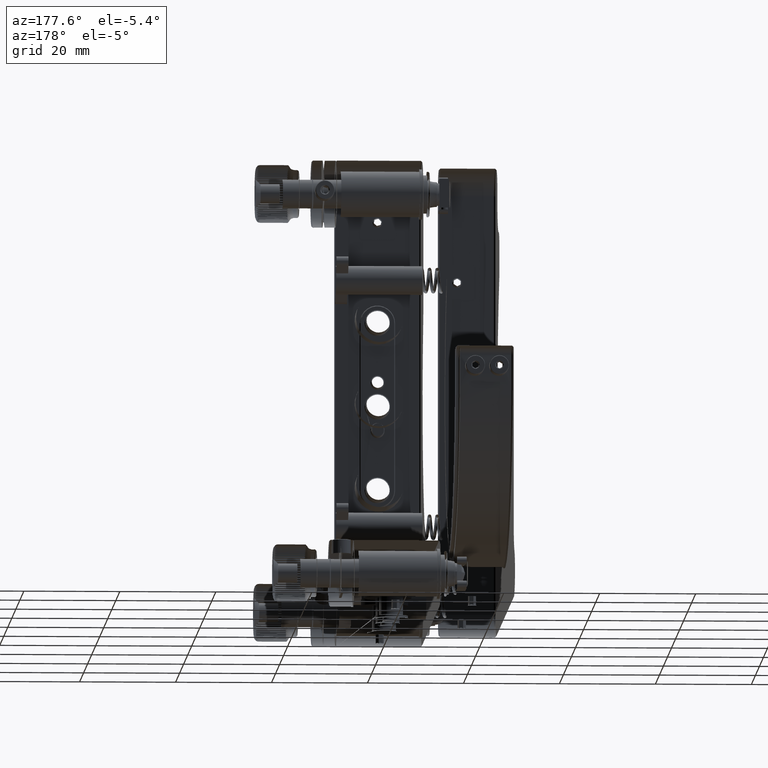
[diagram: clean part render]
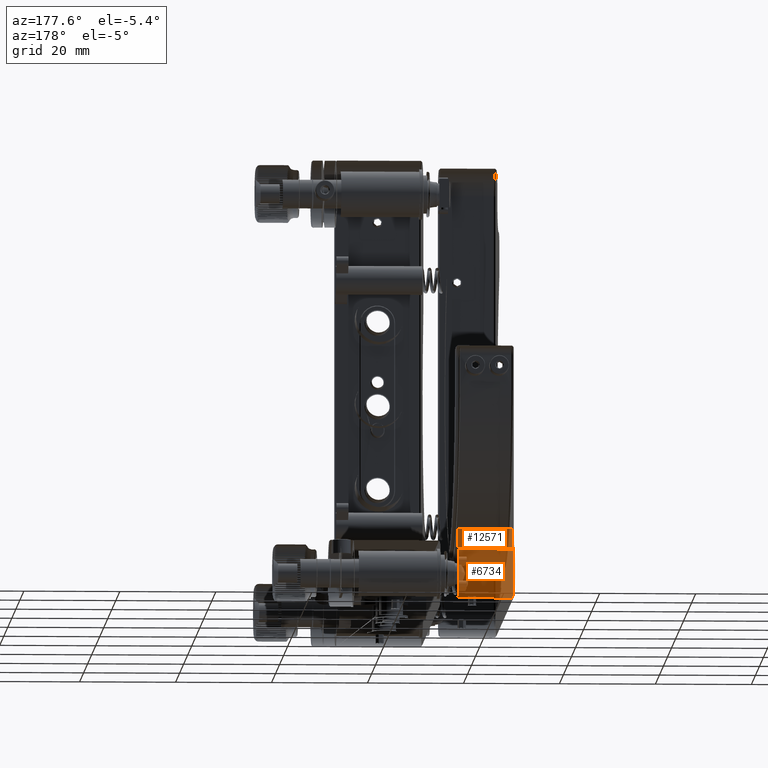
[diagram: same view with one multi-face feature highlighted, each face labeled with its STEP entity id]
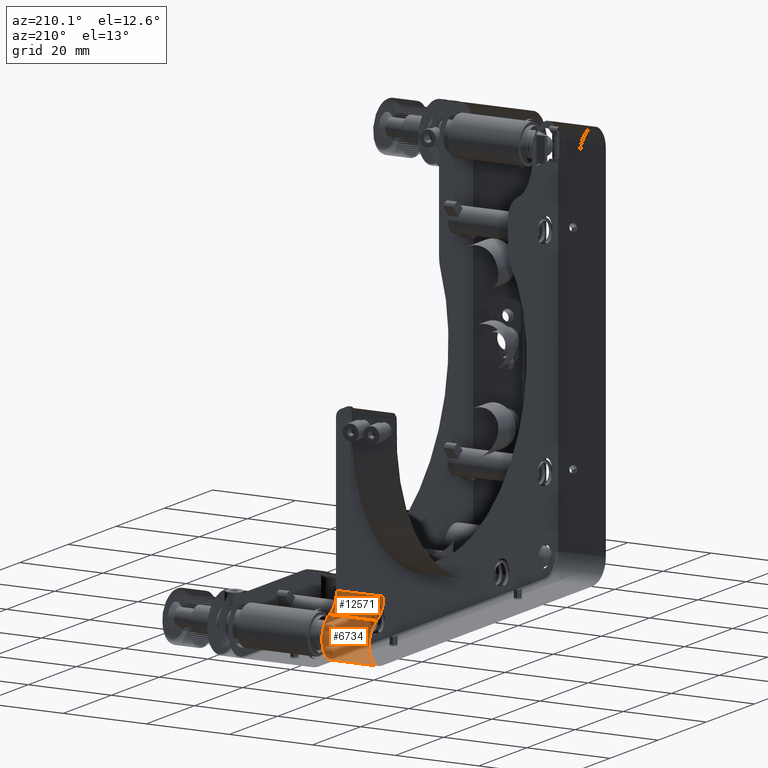
[diagram: same view with one multi-face feature highlighted, each face labeled with its STEP entity id]
A machine part, auxiliary view. The highlighted faces form ONE feature: a constant-radius fillet chain: 2 tangent blend faces with common blend radius 5.125 mm. The faces share edges in the B-rep.
A second angle (auxiliary view) of the same feature is appended — it is thin or edge-on in the first view.
Their STEP definitions:
[1] entity #6734 (Cylinder):
#2994 = VERTEX_POINT ( 'NONE', #31346 ) ;
#4117 = VERTEX_POINT ( 'NONE', #12109 ) ;
#4221 = EDGE_CURVE ( 'NONE', #5369, #2994, #12372, .T. ) ;
#5369 = VERTEX_POINT ( 'NONE', #29076 ) ;
#6734 = ADVANCED_FACE ( 'NONE', ( #28905 ), #13375, .F. ) ;
#7380 = EDGE_CURVE ( 'NONE', #32242, #4117, #11643, .T. ) ;
#9292 = CARTESIAN_POINT ( 'NONE',  ( -12.49999999999999822, 43.95000000000000284, -43.54999999999998295 ) ) ;
#10060 = CARTESIAN_POINT ( 'NONE',  ( -24.19999999995926032, 46.07560975610214626, -38.74955385772973671 ) ) ;
#11643 = LINE ( 'NONE', #28189, #20108 ) ;
#12109 = CARTESIAN_POINT ( 'NONE',  ( -12.80000000001280114, 46.07560975611354337, -38.74955385773071015 ) ) ;
#12372 = LINE ( 'NONE', #28897, #40408 ) ;
#13375 = CYLINDRICAL_SURFACE ( 'NONE', #42683, 5.250000000000004441 ) ;
#13807 = CIRCLE ( 'NONE', #24187, 5.250000000000004441 ) ;
#14182 = DIRECTION ( 'NONE',  ( -1.000000000000000000, -0.000000000000000000, -0.000000000000000000 ) ) ;
#15441 = AXIS2_PLACEMENT_3D ( 'NONE', #33811, #50288, #16222 ) ;
#16222 = DIRECTION ( 'NONE',  ( 0.000000000000000000, 0.000000000000000000, 1.000000000000000000 ) ) ;
#18431 = EDGE_LOOP ( 'NONE', ( #44938, #46573, #50343, #37324 ) ) ;
#20108 = VECTOR ( 'NONE', #53034, 1000.000000000000000 ) ;
#22735 = DIRECTION ( 'NONE',  ( 0.000000000000000000, 0.000000000000000000, 1.000000000000000000 ) ) ;
#22927 = EDGE_CURVE ( 'NONE', #5369, #4117, #37067, .T. ) ;
#24187 = AXIS2_PLACEMENT_3D ( 'NONE', #35460, #35980, #22735 ) ;
#24457 = EDGE_CURVE ( 'NONE', #2994, #32242, #13807, .T. ) ;
#28189 = CARTESIAN_POINT ( 'NONE',  ( -12.49999999999999822, 46.07560975609756326, -38.74955385773539973 ) ) ;
#28897 = CARTESIAN_POINT ( 'NONE',  ( -12.49999999999999822, 43.95000000000000284, -48.79999999999998295 ) ) ;
#28905 = FACE_OUTER_BOUND ( 'NONE', #18431, .T. ) ;
#29076 = CARTESIAN_POINT ( 'NONE',  ( -12.80000000000675797, 43.95000000000000284, -48.80000000000186589 ) ) ;
#31346 = CARTESIAN_POINT ( 'NONE',  ( -24.20000000000000639, 43.95000000000000284, -48.79999999999998295 ) ) ;
#32242 = VERTEX_POINT ( 'NONE', #10060 ) ;
#33811 = CARTESIAN_POINT ( 'NONE',  ( -12.80000000002701199, 43.95000000000000284, -43.54999999999998295 ) ) ;
#35460 = CARTESIAN_POINT ( 'NONE',  ( -24.20000000000000639, 43.95000000000000284, -43.54999999999998295 ) ) ;
#35980 = DIRECTION ( 'NONE',  ( 1.000000000000000000, 0.000000000000000000, 0.000000000000000000 ) ) ;
#37067 = CIRCLE ( 'NONE', #15441, 5.250000000007533529 ) ;
#37324 = ORIENTED_EDGE ( 'NONE', *, *, #24457, .F. ) ;
#38802 = DIRECTION ( 'NONE',  ( 0.000000000000000000, 0.000000000000000000, 1.000000000000000000 ) ) ;
#40408 = VECTOR ( 'NONE', #49170, 1000.000000000000000 ) ;
#42683 = AXIS2_PLACEMENT_3D ( 'NONE', #9292, #14182, #38802 ) ;
#44938 = ORIENTED_EDGE ( 'NONE', *, *, #4221, .F. ) ;
#46573 = ORIENTED_EDGE ( 'NONE', *, *, #22927, .T. ) ;
#49170 = DIRECTION ( 'NONE',  ( -1.000000000000000000, -0.000000000000000000, -0.000000000000000000 ) ) ;
#50288 = DIRECTION ( 'NONE',  ( 1.000000000000000000, -0.000000000000000000, -0.000000000000000000 ) ) ;
#50343 = ORIENTED_EDGE ( 'NONE', *, *, #7380, .F. ) ;
#53034 = DIRECTION ( 'NONE',  ( 1.000000000000000000, 0.000000000000000000, 0.000000000000000000 ) ) ;
[2] entity #12571 (Cylinder):
#299 = DIRECTION ( 'NONE',  ( 1.000000000000000000, 0.000000000000000000, 0.000000000000000000 ) ) ;
#1915 = VERTEX_POINT ( 'NONE', #6571 ) ;
#4117 = VERTEX_POINT ( 'NONE', #12109 ) ;
#4382 = CARTESIAN_POINT ( 'NONE',  ( -24.20000000000000639, 48.09999999999998010, -34.17770038891198681 ) ) ;
#4645 = DIRECTION ( 'NONE',  ( 0.000000000000000000, 0.000000000000000000, -1.000000000000000000 ) ) ;
#5351 = ORIENTED_EDGE ( 'NONE', *, *, #7380, .T. ) ;
#6571 = CARTESIAN_POINT ( 'NONE',  ( -24.20000000001610374, 43.09999999998110098, -34.17770038891198681 ) ) ;
#7380 = EDGE_CURVE ( 'NONE', #32242, #4117, #11643, .T. ) ;
#7616 = AXIS2_PLACEMENT_3D ( 'NONE', #24314, #46369, #46106 ) ;
#9478 = CIRCLE ( 'NONE', #46651, 4.999999999999997335 ) ;
#10060 = CARTESIAN_POINT ( 'NONE',  ( -24.19999999995926032, 46.07560975610214626, -38.74955385772973671 ) ) ;
#11276 = DIRECTION ( 'NONE',  ( 0.000000000000000000, 0.000000000000000000, -1.000000000000000000 ) ) ;
#11643 = LINE ( 'NONE', #28189, #20108 ) ;
#12109 = CARTESIAN_POINT ( 'NONE',  ( -12.80000000001280114, 46.07560975611354337, -38.74955385773071015 ) ) ;
#12571 = ADVANCED_FACE ( 'NONE', ( #32398 ), #15350, .T. ) ;
#13898 = VERTEX_POINT ( 'NONE', #25431 ) ;
#15350 = CYLINDRICAL_SURFACE ( 'NONE', #20486, 4.999999999999997335 ) ;
#18226 = EDGE_CURVE ( 'NONE', #1915, #32242, #9478, .T. ) ;
#20108 = VECTOR ( 'NONE', #53034, 1000.000000000000000 ) ;
#20486 = AXIS2_PLACEMENT_3D ( 'NONE', #31859, #48883, #11276 ) ;
#23061 = ORIENTED_EDGE ( 'NONE', *, *, #28128, .F. ) ;
#24059 = CIRCLE ( 'NONE', #7616, 4.999999999992684074 ) ;
#24314 = CARTESIAN_POINT ( 'NONE',  ( -12.79999999997016857, 48.09999999999998010, -34.17770038891198681 ) ) ;
#25431 = CARTESIAN_POINT ( 'NONE',  ( -12.79999999998508819, 43.09999999999713083, -34.17770038891198681 ) ) ;
#28128 = EDGE_CURVE ( 'NONE', #13898, #4117, #24059, .T. ) ;
#28189 = CARTESIAN_POINT ( 'NONE',  ( -12.49999999999999822, 46.07560975609756326, -38.74955385773539973 ) ) ;
#31859 = CARTESIAN_POINT ( 'NONE',  ( -12.49999999999999822, 48.09999999999998010, -34.17770038891198681 ) ) ;
#32242 = VERTEX_POINT ( 'NONE', #10060 ) ;
#32398 = FACE_OUTER_BOUND ( 'NONE', #37401, .T. ) ;
#33649 = DIRECTION ( 'NONE',  ( -1.000000000000000000, -0.000000000000000000, -0.000000000000000000 ) ) ;
#37317 = ORIENTED_EDGE ( 'NONE', *, *, #18226, .T. ) ;
#37401 = EDGE_LOOP ( 'NONE', ( #23061, #52774, #37317, #5351 ) ) ;
#41500 = CARTESIAN_POINT ( 'NONE',  ( -12.49999999999999822, 43.09999999999998721, -34.17770038891198681 ) ) ;
#44802 = VECTOR ( 'NONE', #33649, 1000.000000000000000 ) ;
#45536 = LINE ( 'NONE', #41500, #44802 ) ;
#46106 = DIRECTION ( 'NONE',  ( 0.000000000000000000, 0.000000000000000000, -1.000000000000000000 ) ) ;
#46369 = DIRECTION ( 'NONE',  ( 1.000000000000000000, 0.000000000000000000, 0.000000000000000000 ) ) ;
#46651 = AXIS2_PLACEMENT_3D ( 'NONE', #4382, #299, #4645 ) ;
#48883 = DIRECTION ( 'NONE',  ( 1.000000000000000000, 0.000000000000000000, 0.000000000000000000 ) ) ;
#50163 = EDGE_CURVE ( 'NONE', #13898, #1915, #45536, .T. ) ;
#52774 = ORIENTED_EDGE ( 'NONE', *, *, #50163, .T. ) ;
#53034 = DIRECTION ( 'NONE',  ( 1.000000000000000000, 0.000000000000000000, 0.000000000000000000 ) ) ;